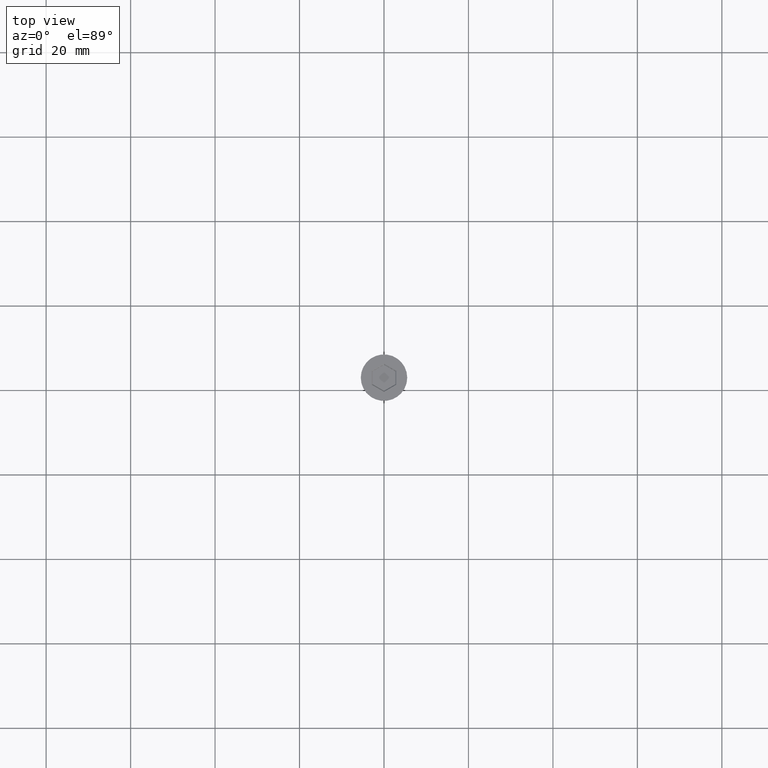
[diagram: clean part render]
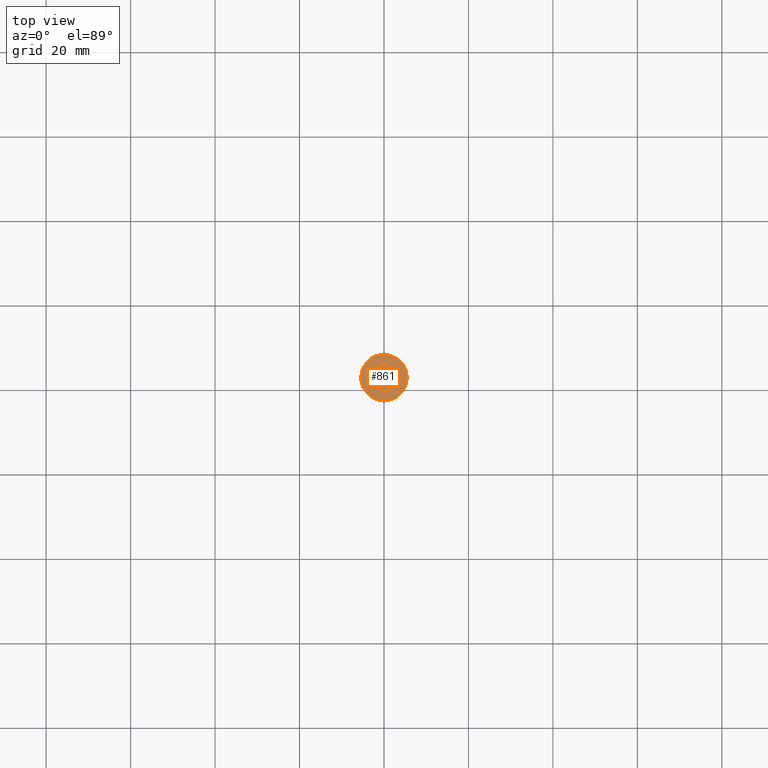
[diagram: same view with one face highlighted and labeled with its STEP entity id]
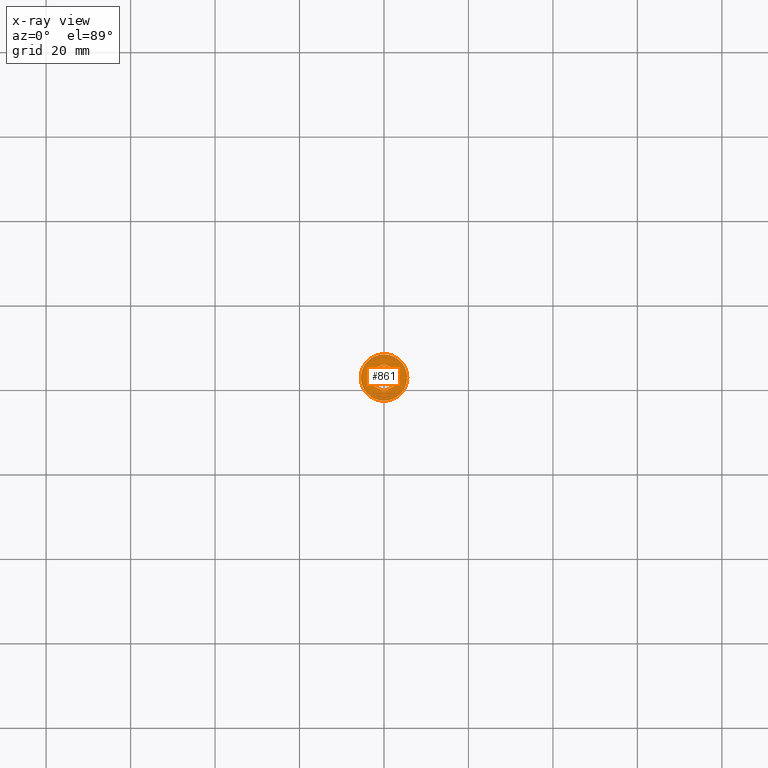
[diagram: x-ray of the same camera — body ghosted, the highlighted face saturated]
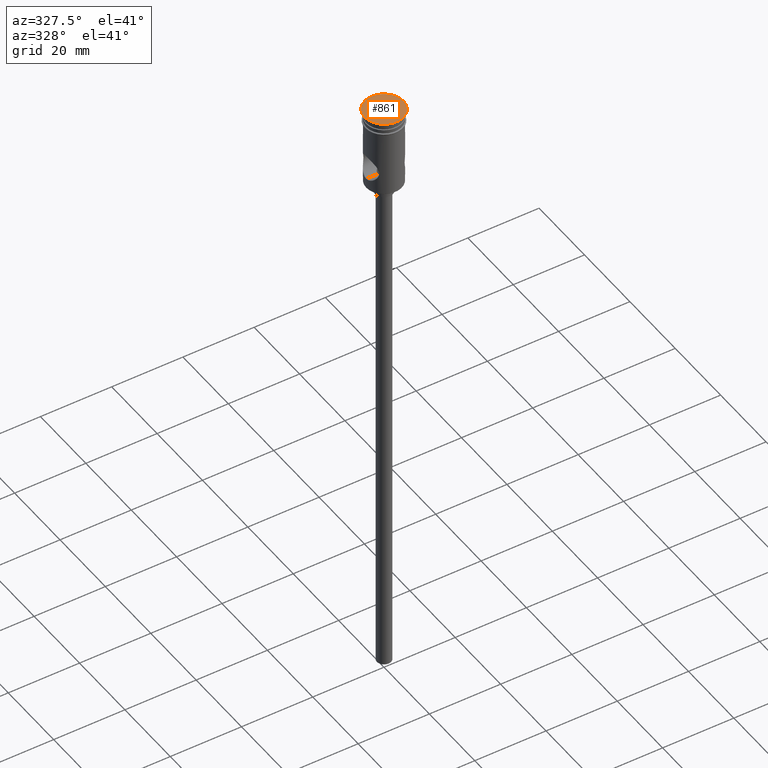
[diagram: same view with one face highlighted and labeled with its STEP entity id]
A machine part, top view. The second image highlights one B-rep face of the part: STEP entity #861.
The next image is the same camera in x-ray: the body ghosted, the highlighted face saturated — about 0% of this face is hidden behind the body in this view.
A second angle (auxiliary view) of the same face is appended — the face is thin or edge-on in the first view.
In plain terms, the highlighted planar face has unit normal (0, -0, 1).
Its self-contained STEP definition (entity closure, byte-faithful):
#44 = CARTESIAN_POINT ( 'NONE',  ( -2.799999999999997158, -1.732050807568871864, 0.000000000000000000 ) ) ;
#52 = CARTESIAN_POINT ( 'NONE',  ( -0.09999999999999764633, 3.290896534380861382, 0.000000000000000000 ) ) ;
#63 = CARTESIAN_POINT ( 'NONE',  ( 2.899999999999992362, -1.674315780649911822, 0.000000000000000000 ) ) ;
#79 = CARTESIAN_POINT ( 'NONE',  ( -2.899999999999994138, -1.674315780649910934, 0.000000000000000000 ) ) ;
#80 = ORIENTED_EDGE ( 'NONE', *, *, #98, .T. ) ;
#88 = VERTEX_POINT ( 'NONE', #793 ) ;
#98 = EDGE_CURVE ( 'NONE', #88, #589, #1211, .T. ) ;
#111 = DIRECTION ( 'NONE',  ( 0.000000000000000000, 1.000000000000000000, 0.000000000000000000 ) ) ;
#122 = EDGE_CURVE ( 'NONE', #335, #739, #655, .T. ) ;
#127 = AXIS2_PLACEMENT_3D ( 'NONE', #955, #420, #1069 ) ;
#128 = VECTOR ( 'NONE', #768, 1000.000000000000000 ) ;
#176 = DIRECTION ( 'NONE',  ( 1.000000000000000000, 0.000000000000000000, 0.000000000000000000 ) ) ;
#209 = VERTEX_POINT ( 'NONE', #63 ) ;
#253 = DIRECTION ( 'NONE',  ( -1.391032035867740017E-16, -1.000000000000000000, 0.000000000000000000 ) ) ;
#282 = FACE_OUTER_BOUND ( 'NONE', #743, .T. ) ;
#283 = ORIENTED_EDGE ( 'NONE', *, *, #1432, .T. ) ;
#331 = EDGE_CURVE ( 'NONE', #1036, #670, #648, .T. ) ;
#334 = CARTESIAN_POINT ( 'NONE',  ( 0.09999999999999654998, -3.290896534380861382, 0.000000000000000000 ) ) ;
#335 = VERTEX_POINT ( 'NONE', #780 ) ;
#348 = LINE ( 'NONE', #796, #475 ) ;
#359 = VECTOR ( 'NONE', #843, 1000.000000000000000 ) ;
#383 = CIRCLE ( 'NONE', #453, 5.500000000000000000 ) ;
#390 = CARTESIAN_POINT ( 'NONE',  ( 0.000000000000000000, 0.000000000000000000, 0.000000000000000000 ) ) ;
#391 = LINE ( 'NONE', #52, #359 ) ;
#399 = LINE ( 'NONE', #44, #1274 ) ;
#420 = DIRECTION ( 'NONE',  ( -0.000000000000000000, -0.000000000000000000, 1.000000000000000000 ) ) ;
#432 = CARTESIAN_POINT ( 'NONE',  ( -2.899999999999994138, 1.674315780649911600, 0.000000000000000000 ) ) ;
#437 = EDGE_CURVE ( 'NONE', #739, #209, #348, .T. ) ;
#453 = AXIS2_PLACEMENT_3D ( 'NONE', #1282, #1297, #1178 ) ;
#475 = VECTOR ( 'NONE', #253, 1000.000000000000000 ) ;
#499 = AXIS2_PLACEMENT_3D ( 'NONE', #390, #724, #176 ) ;
#524 = EDGE_CURVE ( 'NONE', #1431, #1036, #399, .T. ) ;
#540 = EDGE_CURVE ( 'NONE', #589, #88, #383, .T. ) ;
#550 = CARTESIAN_POINT ( 'NONE',  ( 2.899999999999992806, 1.674315780649911378, 0.000000000000000000 ) ) ;
#568 = ORIENTED_EDGE ( 'NONE', *, *, #524, .T. ) ;
#588 = EDGE_CURVE ( 'NONE', #670, #335, #391, .T. ) ;
#589 = VERTEX_POINT ( 'NONE', #626 ) ;
#609 = ORIENTED_EDGE ( 'NONE', *, *, #122, .T. ) ;
#626 = CARTESIAN_POINT ( 'NONE',  ( -5.500000000000000000, 6.735557395310442023E-16, 0.000000000000000000 ) ) ;
#648 = LINE ( 'NONE', #1232, #803 ) ;
#655 = LINE ( 'NONE', #1447, #128 ) ;
#670 = VERTEX_POINT ( 'NONE', #432 ) ;
#671 = CARTESIAN_POINT ( 'NONE',  ( -4.552601062339046804E-16, -3.348631561299821868, 0.000000000000000000 ) ) ;
#682 = ORIENTED_EDGE ( 'NONE', *, *, #331, .T. ) ;
#724 = DIRECTION ( 'NONE',  ( 0.000000000000000000, -0.000000000000000000, 1.000000000000000000 ) ) ;
#739 = VERTEX_POINT ( 'NONE', #550 ) ;
#743 = EDGE_LOOP ( 'NONE', ( #80, #865 ) ) ;
#768 = DIRECTION ( 'NONE',  ( 0.8660254037844387076, -0.4999999999999998335, 0.000000000000000000 ) ) ;
#780 = CARTESIAN_POINT ( 'NONE',  ( -9.683804684061200344E-16, 3.348631561299821868, 0.000000000000000000 ) ) ;
#781 = EDGE_LOOP ( 'NONE', ( #568, #682, #1379, #609, #1088, #283 ) ) ;
#793 = CARTESIAN_POINT ( 'NONE',  ( 5.500000000000000000, 0.000000000000000000, 0.000000000000000000 ) ) ;
#796 = CARTESIAN_POINT ( 'NONE',  ( 2.899999999999992362, -1.558845726811989296, 0.000000000000000000 ) ) ;
#803 = VECTOR ( 'NONE', #111, 1000.000000000000000 ) ;
#843 = DIRECTION ( 'NONE',  ( 0.8660254037844387076, 0.4999999999999998890, 0.000000000000000000 ) ) ;
#849 = DIRECTION ( 'NONE',  ( -0.8660254037844385966, 0.5000000000000001110, 0.000000000000000000 ) ) ;
#861 = ADVANCED_FACE ( 'NONE', ( #1385, #282 ), #1264, .T. ) ;
#865 = ORIENTED_EDGE ( 'NONE', *, *, #540, .T. ) ;
#955 = CARTESIAN_POINT ( 'NONE',  ( 0.000000000000000000, 0.000000000000000000, 0.000000000000000000 ) ) ;
#965 = DIRECTION ( 'NONE',  ( -0.8660254037844387076, -0.4999999999999998890, 0.000000000000000000 ) ) ;
#983 = VECTOR ( 'NONE', #965, 1000.000000000000000 ) ;
#1036 = VERTEX_POINT ( 'NONE', #79 ) ;
#1069 = DIRECTION ( 'NONE',  ( 1.000000000000000000, 0.000000000000000000, 0.000000000000000000 ) ) ;
#1088 = ORIENTED_EDGE ( 'NONE', *, *, #437, .T. ) ;
#1178 = DIRECTION ( 'NONE',  ( 1.000000000000000000, 0.000000000000000000, 0.000000000000000000 ) ) ;
#1211 = CIRCLE ( 'NONE', #127, 5.500000000000000000 ) ;
#1232 = CARTESIAN_POINT ( 'NONE',  ( -2.899999999999994138, 1.558845726811988852, 0.000000000000000000 ) ) ;
#1264 = PLANE ( 'NONE',  #499 ) ;
#1274 = VECTOR ( 'NONE', #849, 1000.000000000000114 ) ;
#1282 = CARTESIAN_POINT ( 'NONE',  ( 0.000000000000000000, 0.000000000000000000, 0.000000000000000000 ) ) ;
#1297 = DIRECTION ( 'NONE',  ( -0.000000000000000000, -0.000000000000000000, 1.000000000000000000 ) ) ;
#1346 = LINE ( 'NONE', #334, #983 ) ;
#1379 = ORIENTED_EDGE ( 'NONE', *, *, #588, .T. ) ;
#1385 = FACE_BOUND ( 'NONE', #781, .T. ) ;
#1431 = VERTEX_POINT ( 'NONE', #671 ) ;
#1432 = EDGE_CURVE ( 'NONE', #209, #1431, #1346, .T. ) ;
#1447 = CARTESIAN_POINT ( 'NONE',  ( 2.799999999999996270, 1.732050807568872086, 0.000000000000000000 ) ) ;